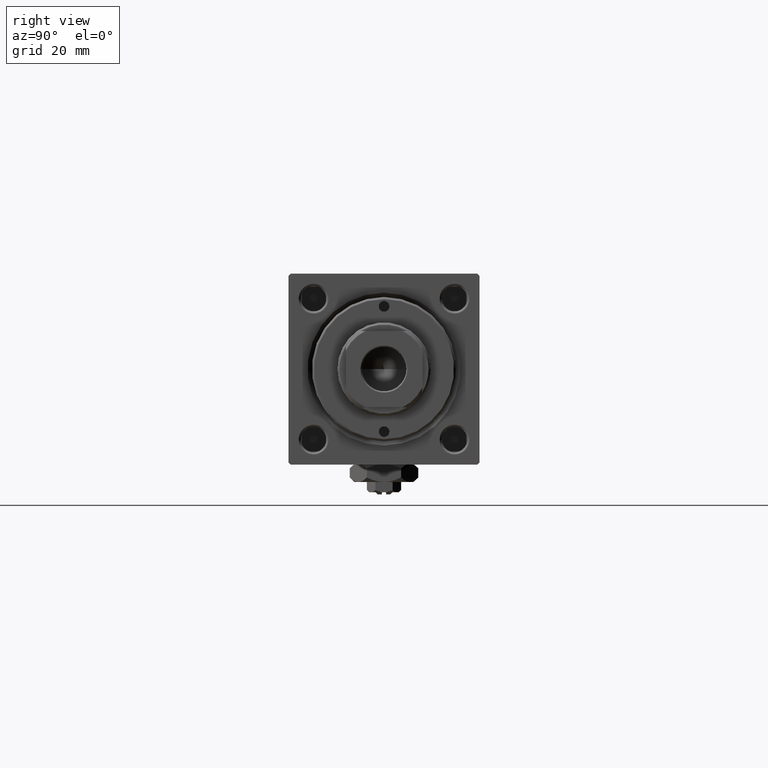
[diagram: clean part render]
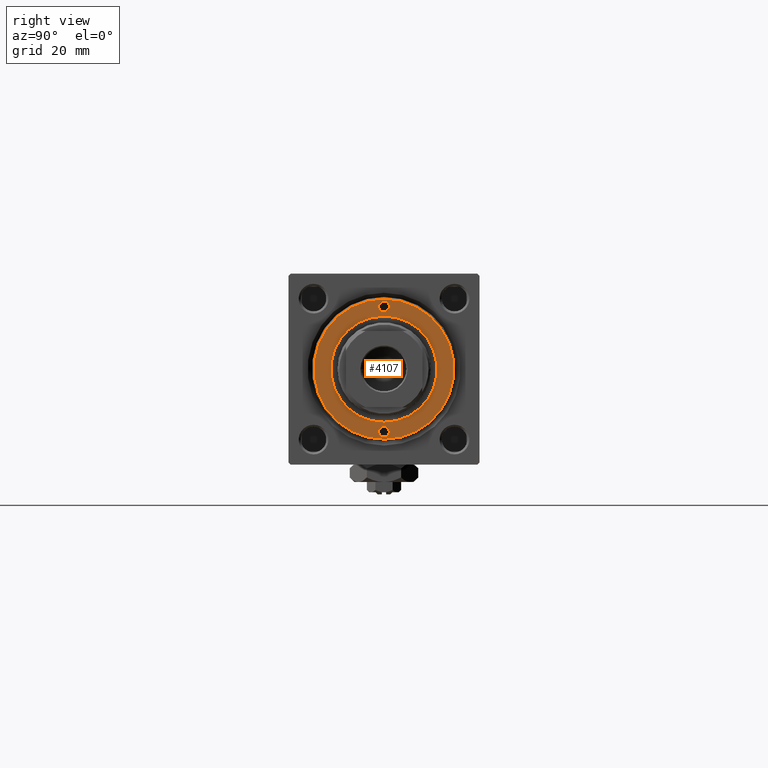
[diagram: same view with one face highlighted and labeled with its STEP entity id]
A machine part, right view. The second image highlights one B-rep face of the part: STEP entity #4107.
In plain terms, the highlighted planar face has unit normal (1, 0, 0).
Its self-contained STEP definition (entity closure, byte-faithful):
#376 = VERTEX_POINT ( 'NONE', #16662 ) ;
#438 = CARTESIAN_POINT ( 'NONE',  ( -14.75000000000000000, 0.000000000000000000, 40.70000000000000284 ) ) ;
#783 = AXIS2_PLACEMENT_3D ( 'NONE', #47479, #7498, #3785 ) ;
#1523 = ORIENTED_EDGE ( 'NONE', *, *, #5482, .T. ) ;
#2669 = DIRECTION ( 'NONE',  ( 0.000000000000000000, 0.000000000000000000, 1.000000000000000000 ) ) ;
#2696 = CIRCLE ( 'NONE', #49219, 1.249999999999999334 ) ;
#3103 = DIRECTION ( 'NONE',  ( 0.000000000000000000, 0.000000000000000000, 1.000000000000000000 ) ) ;
#3785 = DIRECTION ( 'NONE',  ( 1.000000000000000000, 0.000000000000000000, 0.000000000000000000 ) ) ;
#4107 = ADVANCED_FACE ( 'NONE', ( #16451, #41329, #32590, #12470 ), #5058, .T. ) ;
#4384 = VERTEX_POINT ( 'NONE', #5444 ) ;
#5058 = PLANE ( 'NONE',  #47829 ) ;
#5174 = VERTEX_POINT ( 'NONE', #37051 ) ;
#5444 = CARTESIAN_POINT ( 'NONE',  ( 16.49999999999999289, 2.051283388571816493E-15, 40.70000000000000284 ) ) ;
#5482 = EDGE_CURVE ( 'NONE', #49395, #4384, #29319, .T. ) ;
#5634 = CARTESIAN_POINT ( 'NONE',  ( -16.49999999999999289, 0.000000000000000000, 40.70000000000000284 ) ) ;
#7447 = VERTEX_POINT ( 'NONE', #18202 ) ;
#7498 = DIRECTION ( 'NONE',  ( -0.000000000000000000, -0.000000000000000000, 1.000000000000000000 ) ) ;
#7894 = DIRECTION ( 'NONE',  ( 0.000000000000000000, 0.000000000000000000, 1.000000000000000000 ) ) ;
#8078 = DIRECTION ( 'NONE',  ( 1.000000000000000000, 0.000000000000000000, 0.000000000000000000 ) ) ;
#8839 = CARTESIAN_POINT ( 'NONE',  ( -13.50000000000000000, 0.000000000000000000, 40.70000000000000284 ) ) ;
#10316 = VERTEX_POINT ( 'NONE', #30583 ) ;
#10818 = VERTEX_POINT ( 'NONE', #18870 ) ;
#11002 = ORIENTED_EDGE ( 'NONE', *, *, #23807, .F. ) ;
#11018 = CARTESIAN_POINT ( 'NONE',  ( 0.000000000000000000, 0.000000000000000000, 40.70000000000000284 ) ) ;
#12257 = EDGE_LOOP ( 'NONE', ( #48339, #11002 ) ) ;
#12470 = FACE_OUTER_BOUND ( 'NONE', #23994, .T. ) ;
#12713 = EDGE_LOOP ( 'NONE', ( #34054, #25292 ) ) ;
#13383 = CARTESIAN_POINT ( 'NONE',  ( 0.000000000000000000, 0.000000000000000000, 40.70000000000000284 ) ) ;
#13516 = CARTESIAN_POINT ( 'NONE',  ( -14.75000000000000000, 0.000000000000000000, 40.70000000000000284 ) ) ;
#13896 = ORIENTED_EDGE ( 'NONE', *, *, #27628, .F. ) ;
#14497 = ORIENTED_EDGE ( 'NONE', *, *, #44376, .F. ) ;
#16327 = DIRECTION ( 'NONE',  ( -0.000000000000000000, -0.000000000000000000, 1.000000000000000000 ) ) ;
#16451 = FACE_BOUND ( 'NONE', #12713, .T. ) ;
#16662 = CARTESIAN_POINT ( 'NONE',  ( 13.49999999999999822, 1.530808498934192803E-16, 40.70000000000000284 ) ) ;
#16728 = AXIS2_PLACEMENT_3D ( 'NONE', #13383, #28754, #44914 ) ;
#17658 = EDGE_CURVE ( 'NONE', #23972, #10818, #48210, .T. ) ;
#18202 = CARTESIAN_POINT ( 'NONE',  ( 12.50000000000000000, 0.000000000000000000, 40.70000000000000284 ) ) ;
#18870 = CARTESIAN_POINT ( 'NONE',  ( -16.00000000000000000, 1.530808498934190585E-16, 40.70000000000000284 ) ) ;
#21081 = DIRECTION ( 'NONE',  ( 1.000000000000000000, 0.000000000000000000, 0.000000000000000000 ) ) ;
#21121 = CARTESIAN_POINT ( 'NONE',  ( 0.000000000000000000, 0.000000000000000000, 40.70000000000000284 ) ) ;
#22832 = AXIS2_PLACEMENT_3D ( 'NONE', #43410, #2669, #39432 ) ;
#23305 = DIRECTION ( 'NONE',  ( 1.000000000000000000, 0.000000000000000000, 0.000000000000000000 ) ) ;
#23807 = EDGE_CURVE ( 'NONE', #10316, #7447, #39530, .T. ) ;
#23972 = VERTEX_POINT ( 'NONE', #8839 ) ;
#23994 = EDGE_LOOP ( 'NONE', ( #1523, #51198 ) ) ;
#24833 = DIRECTION ( 'NONE',  ( 1.000000000000000000, 0.000000000000000000, 0.000000000000000000 ) ) ;
#24913 = DIRECTION ( 'NONE',  ( -0.000000000000000000, -0.000000000000000000, 1.000000000000000000 ) ) ;
#25292 = ORIENTED_EDGE ( 'NONE', *, *, #37982, .F. ) ;
#26510 = DIRECTION ( 'NONE',  ( -0.000000000000000000, -0.000000000000000000, 1.000000000000000000 ) ) ;
#27628 = EDGE_CURVE ( 'NONE', #376, #5174, #47254, .T. ) ;
#28754 = DIRECTION ( 'NONE',  ( 0.000000000000000000, 0.000000000000000000, 1.000000000000000000 ) ) ;
#29319 = CIRCLE ( 'NONE', #44557, 16.49999999999999289 ) ;
#29673 = DIRECTION ( 'NONE',  ( 1.000000000000000000, 0.000000000000000000, 0.000000000000000000 ) ) ;
#30583 = CARTESIAN_POINT ( 'NONE',  ( -12.50000000000000000, 1.530808498934191521E-15, 40.70000000000000284 ) ) ;
#32130 = CIRCLE ( 'NONE', #22832, 16.49999999999999289 ) ;
#32590 = FACE_BOUND ( 'NONE', #12257, .T. ) ;
#33808 = EDGE_CURVE ( 'NONE', #4384, #49395, #32130, .T. ) ;
#34054 = ORIENTED_EDGE ( 'NONE', *, *, #17658, .F. ) ;
#35395 = DIRECTION ( 'NONE',  ( 1.000000000000000000, 0.000000000000000000, -0.000000000000000000 ) ) ;
#36984 = CIRCLE ( 'NONE', #51383, 12.50000000000000000 ) ;
#37051 = CARTESIAN_POINT ( 'NONE',  ( 16.00000000000000000, 0.000000000000000000, 40.70000000000000284 ) ) ;
#37982 = EDGE_CURVE ( 'NONE', #10818, #23972, #2696, .T. ) ;
#39197 = CARTESIAN_POINT ( 'NONE',  ( 14.75000000000000000, 0.000000000000000000, 40.70000000000000284 ) ) ;
#39432 = DIRECTION ( 'NONE',  ( 1.000000000000000000, 0.000000000000000000, 0.000000000000000000 ) ) ;
#39530 = CIRCLE ( 'NONE', #16728, 12.50000000000000000 ) ;
#39964 = AXIS2_PLACEMENT_3D ( 'NONE', #39197, #26510, #23305 ) ;
#41329 = FACE_BOUND ( 'NONE', #44570, .T. ) ;
#43410 = CARTESIAN_POINT ( 'NONE',  ( 0.000000000000000000, 0.000000000000000000, 40.70000000000000284 ) ) ;
#44376 = EDGE_CURVE ( 'NONE', #5174, #376, #45925, .T. ) ;
#44557 = AXIS2_PLACEMENT_3D ( 'NONE', #11018, #51516, #8078 ) ;
#44570 = EDGE_LOOP ( 'NONE', ( #14497, #13896 ) ) ;
#44865 = AXIS2_PLACEMENT_3D ( 'NONE', #438, #16327, #21081 ) ;
#44914 = DIRECTION ( 'NONE',  ( 1.000000000000000000, 0.000000000000000000, 0.000000000000000000 ) ) ;
#45925 = CIRCLE ( 'NONE', #39964, 1.250000000000001110 ) ;
#47254 = CIRCLE ( 'NONE', #783, 1.250000000000001110 ) ;
#47479 = CARTESIAN_POINT ( 'NONE',  ( 14.75000000000000000, 0.000000000000000000, 40.70000000000000284 ) ) ;
#47829 = AXIS2_PLACEMENT_3D ( 'NONE', #51281, #3103, #35395 ) ;
#48210 = CIRCLE ( 'NONE', #44865, 1.249999999999999334 ) ;
#48339 = ORIENTED_EDGE ( 'NONE', *, *, #48990, .F. ) ;
#48990 = EDGE_CURVE ( 'NONE', #7447, #10316, #36984, .T. ) ;
#49219 = AXIS2_PLACEMENT_3D ( 'NONE', #13516, #24913, #29673 ) ;
#49395 = VERTEX_POINT ( 'NONE', #5634 ) ;
#51198 = ORIENTED_EDGE ( 'NONE', *, *, #33808, .T. ) ;
#51281 = CARTESIAN_POINT ( 'NONE',  ( 0.000000000000000000, 0.000000000000000000, 40.70000000000000284 ) ) ;
#51383 = AXIS2_PLACEMENT_3D ( 'NONE', #21121, #7894, #24833 ) ;
#51516 = DIRECTION ( 'NONE',  ( 0.000000000000000000, 0.000000000000000000, 1.000000000000000000 ) ) ;